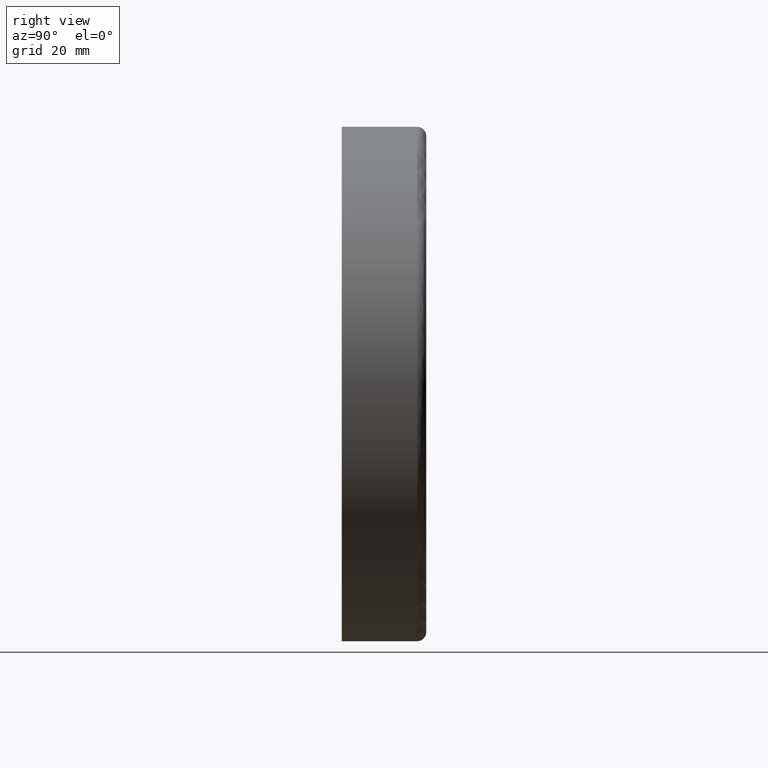
[diagram: clean part render]
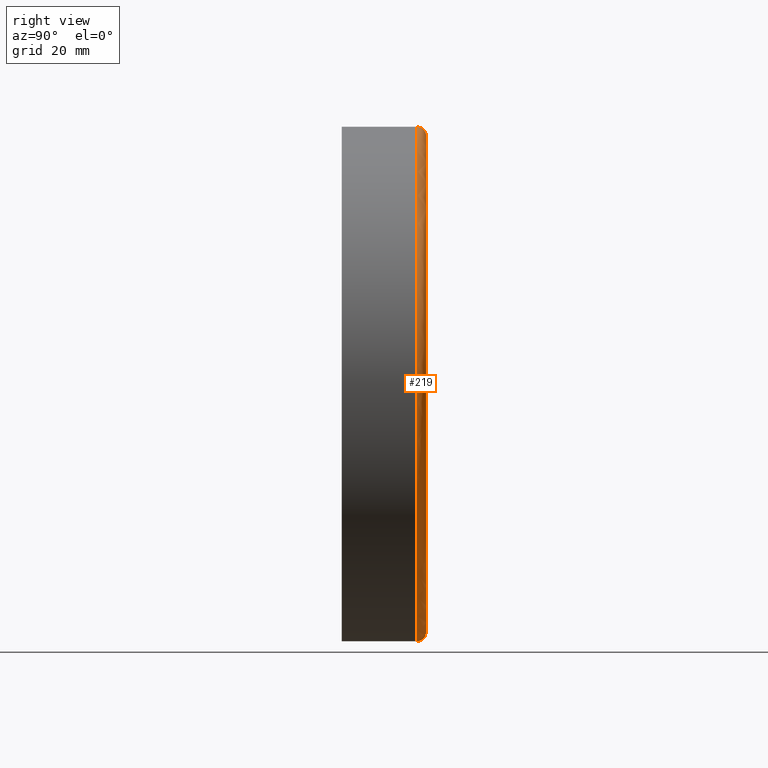
[diagram: same view with one face highlighted and labeled with its STEP entity id]
A machine part, right view. The second image highlights one B-rep face of the part: STEP entity #219.
In plain terms, the highlighted toroidal blend (fillet) surface has major radius 54 mm and minor (blend) radius 2 mm.
Its self-contained STEP definition (entity closure, byte-faithful):
#1 = AXIS2_PLACEMENT_3D ( 'NONE', #344, #253, #210 ) ;
#3 = ORIENTED_EDGE ( 'NONE', *, *, #94, .F. ) ;
#24 = CIRCLE ( 'NONE', #127, 2.000000000000001800 ) ;
#26 = CARTESIAN_POINT ( 'NONE',  ( 0.0000000000000000000, 16.39999999999999900, -56.00000000000000700 ) ) ;
#29 = ORIENTED_EDGE ( 'NONE', *, *, #96, .F. ) ;
#36 = CARTESIAN_POINT ( 'NONE',  ( 0.0000000000000000000, 16.39999999999999900, 54.00000000000000700 ) ) ;
#42 = CARTESIAN_POINT ( 'NONE',  ( 6.858022075225179300E-015, 16.39999999999999900, 56.00000000000000700 ) ) ;
#64 = ORIENTED_EDGE ( 'NONE', *, *, #118, .F. ) ;
#75 = CARTESIAN_POINT ( 'NONE',  ( 0.0000000000000000000, 16.39999999999999900, 0.0000000000000000000 ) ) ;
#91 = VERTEX_POINT ( 'NONE', #42 ) ;
#94 = EDGE_CURVE ( 'NONE', #300, #178, #160, .T. ) ;
#96 = EDGE_CURVE ( 'NONE', #91, #300, #24, .T. ) ;
#102 = AXIS2_PLACEMENT_3D ( 'NONE', #295, #171, #357 ) ;
#118 = EDGE_CURVE ( 'NONE', #322, #91, #365, .T. ) ;
#127 = AXIS2_PLACEMENT_3D ( 'NONE', #36, #346, #158 ) ;
#133 = CIRCLE ( 'NONE', #102, 2.000000000000001800 ) ;
#158 = DIRECTION ( 'NONE',  ( 0.0000000000000000000, 0.0000000000000000000, 1.000000000000000000 ) ) ;
#160 = CIRCLE ( 'NONE', #1, 54.00000000000000700 ) ;
#171 = DIRECTION ( 'NONE',  ( 1.000000000000000000, -0.0000000000000000000, 1.224646799147353200E-016 ) ) ;
#178 = VERTEX_POINT ( 'NONE', #255 ) ;
#190 = TOROIDAL_SURFACE ( 'NONE', #354, 54.00000000000000700, 2.000000000000000000 ) ;
#196 = FACE_OUTER_BOUND ( 'NONE', #270, .T. ) ;
#210 = DIRECTION ( 'NONE',  ( 0.0000000000000000000, 0.0000000000000000000, 1.000000000000000000 ) ) ;
#213 = CARTESIAN_POINT ( 'NONE',  ( 0.0000000000000000000, 16.39999999999999900, 0.0000000000000000000 ) ) ;
#215 = DIRECTION ( 'NONE',  ( 0.0000000000000000000, 0.0000000000000000000, 1.000000000000000000 ) ) ;
#219 = ADVANCED_FACE ( 'NONE', ( #196 ), #190, .T. ) ;
#221 = DIRECTION ( 'NONE',  ( 0.0000000000000000000, 0.0000000000000000000, 1.000000000000000000 ) ) ;
#253 = DIRECTION ( 'NONE',  ( 0.0000000000000000000, 1.000000000000000000, 0.0000000000000000000 ) ) ;
#254 = DIRECTION ( 'NONE',  ( -0.0000000000000000000, -1.000000000000000000, -0.0000000000000000000 ) ) ;
#255 = CARTESIAN_POINT ( 'NONE',  ( 6.735557395310443400E-015, 18.39999999999999900, -54.00000000000000700 ) ) ;
#262 = DIRECTION ( 'NONE',  ( 0.0000000000000000000, 1.000000000000000000, 0.0000000000000000000 ) ) ;
#263 = AXIS2_PLACEMENT_3D ( 'NONE', #213, #254, #215 ) ;
#270 = EDGE_LOOP ( 'NONE', ( #64, #359, #3, #29 ) ) ;
#295 = CARTESIAN_POINT ( 'NONE',  ( 6.613092715395708300E-015, 16.39999999999999900, -54.00000000000000700 ) ) ;
#298 = EDGE_CURVE ( 'NONE', #322, #178, #133, .T. ) ;
#300 = VERTEX_POINT ( 'NONE', #330 ) ;
#322 = VERTEX_POINT ( 'NONE', #26 ) ;
#330 = CARTESIAN_POINT ( 'NONE',  ( 0.0000000000000000000, 18.39999999999999900, 54.00000000000000700 ) ) ;
#344 = CARTESIAN_POINT ( 'NONE',  ( 0.0000000000000000000, 18.39999999999999900, 0.0000000000000000000 ) ) ;
#346 = DIRECTION ( 'NONE',  ( -1.000000000000000000, 0.0000000000000000000, 0.0000000000000000000 ) ) ;
#354 = AXIS2_PLACEMENT_3D ( 'NONE', #75, #262, #221 ) ;
#357 = DIRECTION ( 'NONE',  ( 1.224646799147353500E-016, 0.0000000000000000000, -1.000000000000000000 ) ) ;
#359 = ORIENTED_EDGE ( 'NONE', *, *, #298, .T. ) ;
#365 = CIRCLE ( 'NONE', #263, 56.00000000000000700 ) ;